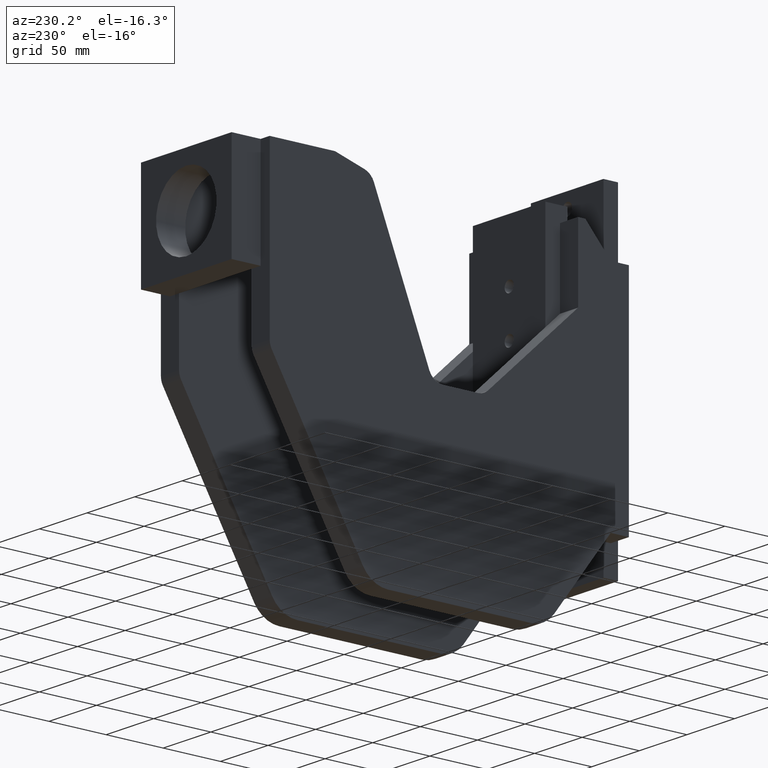
[diagram: clean part render]
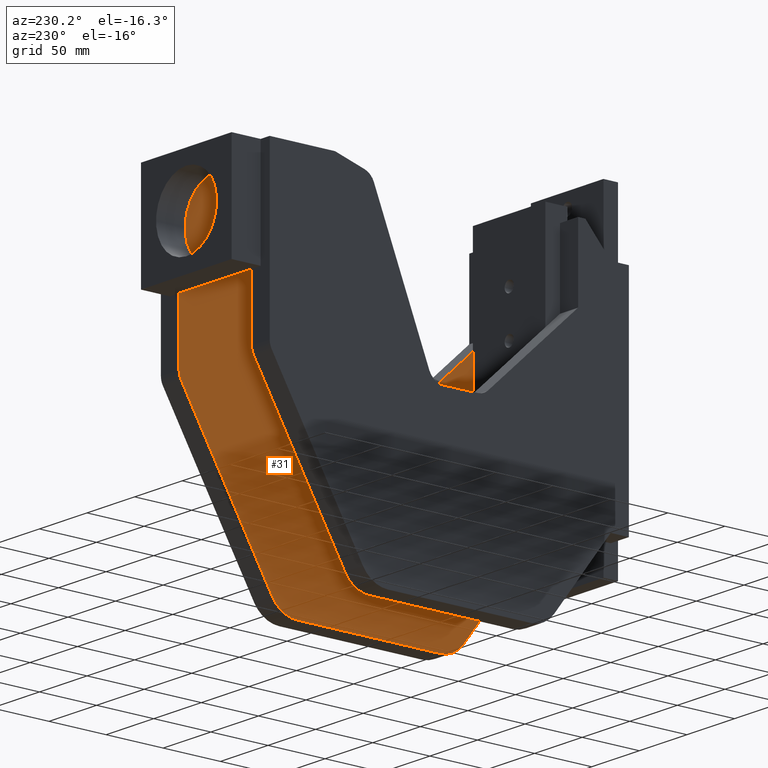
[diagram: same view with one face highlighted and labeled with its STEP entity id]
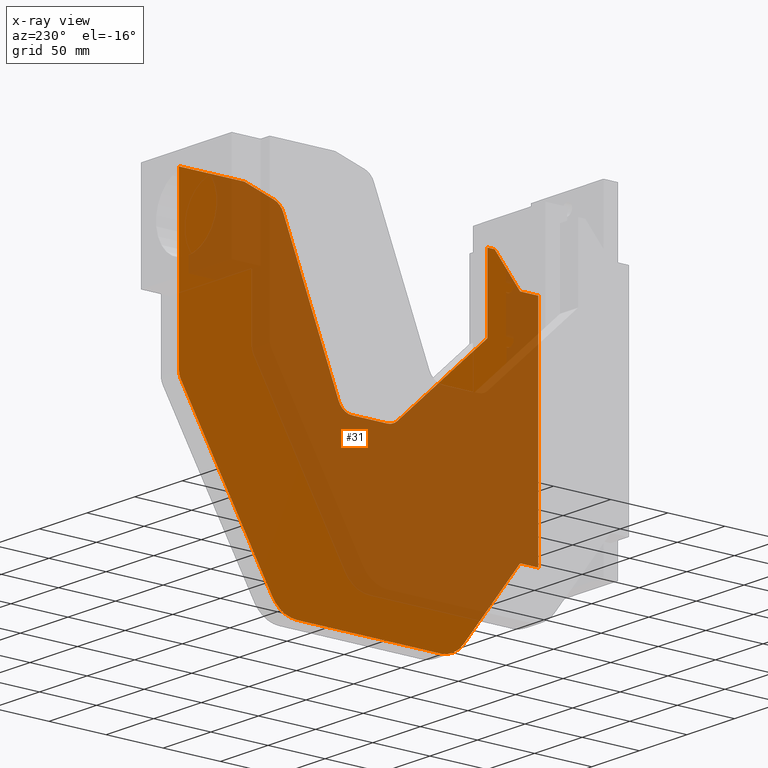
[diagram: x-ray of the same camera — body ghosted, the highlighted face saturated]
A machine part, auxiliary view. The second image highlights one B-rep face of the part: STEP entity #31.
The next image is the same camera in x-ray: the body ghosted, the highlighted face saturated — about 62% of this face is hidden behind the body in this view.
In plain terms, the highlighted planar face has unit normal (1, -0, 0).
Its self-contained STEP definition (entity closure, byte-faithful):
#9 = ORIENTED_EDGE ( 'NONE', *, *, #236, .F. ) ;
#12 = ORIENTED_EDGE ( 'NONE', *, *, #255, .F. ) ;
#16 = ORIENTED_EDGE ( 'NONE', *, *, #91, .F. ) ;
#21 = ORIENTED_EDGE ( 'NONE', *, *, #220, .F. ) ;
#26 = ORIENTED_EDGE ( 'NONE', *, *, #81, .F. ) ;
#27 = ORIENTED_EDGE ( 'NONE', *, *, #201, .F. ) ;
#30 = ORIENTED_EDGE ( 'NONE', *, *, #156, .F. ) ;
#31 = ADVANCED_FACE ( 'NONE', ( #580 ), #579, .F. ) ;
#32 = ORIENTED_EDGE ( 'NONE', *, *, #162, .F. ) ;
#34 = VERTEX_POINT ( 'NONE', #629 ) ;
#37 = VERTEX_POINT ( 'NONE', #628 ) ;
#39 = ORIENTED_EDGE ( 'NONE', *, *, #209, .F. ) ;
#40 = ORIENTED_EDGE ( 'NONE', *, *, #192, .F. ) ;
#45 = VERTEX_POINT ( 'NONE', #616 ) ;
#48 = ORIENTED_EDGE ( 'NONE', *, *, #205, .F. ) ;
#50 = ORIENTED_EDGE ( 'NONE', *, *, #140, .F. ) ;
#51 = ORIENTED_EDGE ( 'NONE', *, *, #148, .F. ) ;
#54 = ORIENTED_EDGE ( 'NONE', *, *, #283, .F. ) ;
#55 = ORIENTED_EDGE ( 'NONE', *, *, #175, .F. ) ;
#60 = EDGE_CURVE ( 'NONE', #265, #37, #609, .T. ) ;
#70 = EDGE_LOOP ( 'NONE', ( #32, #12, #76, #73, #26, #75, #79, #16, #72, #54, #21, #9, #40, #80, #55, #27, #48, #39, #50, #51, #30 ) ) ;
#72 = ORIENTED_EDGE ( 'NONE', *, *, #246, .F. ) ;
#73 = ORIENTED_EDGE ( 'NONE', *, *, #264, .F. ) ;
#75 = ORIENTED_EDGE ( 'NONE', *, *, #108, .F. ) ;
#76 = ORIENTED_EDGE ( 'NONE', *, *, #60, .F. ) ;
#79 = ORIENTED_EDGE ( 'NONE', *, *, #95, .F. ) ;
#80 = ORIENTED_EDGE ( 'NONE', *, *, #180, .F. ) ;
#81 = EDGE_CURVE ( 'NONE', #110, #45, #650, .T. ) ;
#91 = EDGE_CURVE ( 'NONE', #247, #34, #635, .T. ) ;
#95 = EDGE_CURVE ( 'NONE', #34, #98, #689, .T. ) ;
#98 = VERTEX_POINT ( 'NONE', #683 ) ;
#108 = EDGE_CURVE ( 'NONE', #98, #110, #732, .T. ) ;
#110 = VERTEX_POINT ( 'NONE', #728 ) ;
#140 = EDGE_CURVE ( 'NONE', #149, #141, #744, .T. ) ;
#141 = VERTEX_POINT ( 'NONE', #740 ) ;
#148 = EDGE_CURVE ( 'NONE', #157, #149, #791, .T. ) ;
#149 = VERTEX_POINT ( 'NONE', #787 ) ;
#156 = EDGE_CURVE ( 'NONE', #164, #157, #777, .T. ) ;
#157 = VERTEX_POINT ( 'NONE', #773 ) ;
#162 = EDGE_CURVE ( 'NONE', #163, #164, #767, .T. ) ;
#163 = VERTEX_POINT ( 'NONE', #763 ) ;
#164 = VERTEX_POINT ( 'NONE', #762 ) ;
#175 = EDGE_CURVE ( 'NONE', #196, #178, #806, .T. ) ;
#178 = VERTEX_POINT ( 'NONE', #800 ) ;
#180 = EDGE_CURVE ( 'NONE', #178, #181, #799, .T. ) ;
#181 = VERTEX_POINT ( 'NONE', #858 ) ;
#192 = EDGE_CURVE ( 'NONE', #181, #226, #841, .T. ) ;
#196 = VERTEX_POINT ( 'NONE', #833 ) ;
#201 = EDGE_CURVE ( 'NONE', #206, #196, #892, .T. ) ;
#205 = EDGE_CURVE ( 'NONE', #213, #206, #881, .T. ) ;
#206 = VERTEX_POINT ( 'NONE', #877 ) ;
#209 = EDGE_CURVE ( 'NONE', #141, #213, #876, .T. ) ;
#213 = VERTEX_POINT ( 'NONE', #866 ) ;
#220 = EDGE_CURVE ( 'NONE', #237, #221, #916, .T. ) ;
#221 = VERTEX_POINT ( 'NONE', #907 ) ;
#226 = VERTEX_POINT ( 'NONE', #901 ) ;
#236 = EDGE_CURVE ( 'NONE', #226, #237, #947, .T. ) ;
#237 = VERTEX_POINT ( 'NONE', #943 ) ;
#246 = EDGE_CURVE ( 'NONE', #284, #247, #927, .T. ) ;
#247 = VERTEX_POINT ( 'NONE', #987 ) ;
#255 = EDGE_CURVE ( 'NONE', #37, #163, #976, .T. ) ;
#264 = EDGE_CURVE ( 'NONE', #45, #265, #960, .T. ) ;
#265 = VERTEX_POINT ( 'NONE', #956 ) ;
#283 = EDGE_CURVE ( 'NONE', #221, #284, #989, .T. ) ;
#284 = VERTEX_POINT ( 'NONE', #1049 ) ;
#575 = DIRECTION ( 'NONE',  ( 1.000000000000000000, 3.155443620883993600E-030, 1.405158487424903500E-030 ) ) ;
#576 = DIRECTION ( 'NONE',  ( -1.405158487424903500E-030, -1.450379403067575000E-030, 1.000000000000000000 ) ) ;
#577 = CARTESIAN_POINT ( 'NONE',  ( 24.46844123263112500, 21.79248882520507600, 0.0000000000000000000 ) ) ;
#578 = AXIS2_PLACEMENT_3D ( 'NONE', #577, #576, #575 ) ;
#579 = PLANE ( 'NONE',  #578 ) ;
#580 = FACE_OUTER_BOUND ( 'NONE', #70, .T. ) ;
#605 = DIRECTION ( 'NONE',  ( 1.000000000000000000, 0.0000000000000000000, 1.405158487424898600E-030 ) ) ;
#606 = DIRECTION ( 'NONE',  ( -1.405158487424903600E-030, 1.450379403067574800E-030, -1.000000000000000000 ) ) ;
#607 = CARTESIAN_POINT ( 'NONE',  ( 24.46844123263112500, 21.79248882520507600, 0.0000000000000000000 ) ) ;
#608 = AXIS2_PLACEMENT_3D ( 'NONE', #607, #606, #605 ) ;
#609 = CIRCLE ( 'NONE', #608, 0.5000000000000017800 ) ;
#616 = CARTESIAN_POINT ( 'NONE',  ( 24.96844123263105800, 23.00701407466547400, 0.0000000000000000000 ) ) ;
#628 = CARTESIAN_POINT ( 'NONE',  ( 24.83584294587590700, 21.45334876401384600, -8.878505979408856000E-015 ) ) ;
#629 = CARTESIAN_POINT ( 'NONE',  ( 19.52378603699440500, 25.70418072678714000, -1.365923996832131600E-016 ) ) ;
#635 = LINE ( 'NONE', #697, #696 ) ;
#646 = DIRECTION ( 'NONE',  ( 1.000000000000000000, 0.0000000000000000000, 1.395161849477362800E-030 ) ) ;
#647 = DIRECTION ( 'NONE',  ( -1.405158487424903600E-030, 1.450379403067574800E-030, -1.000000000000000000 ) ) ;
#648 = CARTESIAN_POINT ( 'NONE',  ( 24.46844123263127800, 23.00701453877276100, -1.365923996832131600E-016 ) ) ;
#649 = AXIS2_PLACEMENT_3D ( 'NONE', #648, #647, #646 ) ;
#650 = CIRCLE ( 'NONE', #649, 0.5000000000000017800 ) ;
#683 = CARTESIAN_POINT ( 'NONE',  ( 19.81886975367431700, 25.38287426402068500, -1.365923996832131600E-016 ) ) ;
#685 = DIRECTION ( 'NONE',  ( 1.000000000000000000, 0.0000000000000000000, 1.405158487424905400E-030 ) ) ;
#686 = DIRECTION ( 'NONE',  ( 1.405158487424903600E-030, -1.450379403067574800E-030, 1.000000000000000000 ) ) ;
#687 = CARTESIAN_POINT ( 'NONE',  ( 20.00269919255537200, 25.84785462640244400, 0.0000000000000000000 ) ) ;
#688 = AXIS2_PLACEMENT_3D ( 'NONE', #687, #686, #685 ) ;
#689 = CIRCLE ( 'NONE', #688, 0.5000000000000061100 ) ;
#695 = DIRECTION ( 'NONE',  ( 0.2873477992306192600, -0.9578263111218650000, 1.531499491776728000E-030 ) ) ;
#696 = VECTOR ( 'NONE', #695, 39.37007874015748100 ) ;
#697 = CARTESIAN_POINT ( 'NONE',  ( 19.21844123263078400, 26.72199707466578600, -1.365923996832131600E-016 ) ) ;
#728 = CARTESIAN_POINT ( 'NONE',  ( 24.65227067151233300, 23.47199490115452000, 0.0000000000000000000 ) ) ;
#729 = DIRECTION ( 'NONE',  ( 0.9299607247635293100, -0.3676588777621061500, 1.867381674077834500E-030 ) ) ;
#730 = VECTOR ( 'NONE', #729, 39.37007874015748100 ) ;
#731 = CARTESIAN_POINT ( 'NONE',  ( 19.81886975367431700, 25.38287426402068500, -1.365923996832131600E-016 ) ) ;
#732 = LINE ( 'NONE', #731, #730 ) ;
#740 = CARTESIAN_POINT ( 'NONE',  ( 20.46844123263079100, 16.59699707466579000, -1.365923996832131600E-016 ) ) ;
#741 = DIRECTION ( 'NONE',  ( -3.747089299799806100E-030, -1.000000000000000000, 1.401075596491286600E-030 ) ) ;
#742 = VECTOR ( 'NONE', #741, 39.37007874015748100 ) ;
#743 = CARTESIAN_POINT ( 'NONE',  ( 20.46844123263078800, 17.22199707466579000, -1.365923996832131600E-016 ) ) ;
#744 = LINE ( 'NONE', #743, #742 ) ;
#762 = CARTESIAN_POINT ( 'NONE',  ( 19.46844123263079100, 18.34699707466535700, 0.0000000000000000000 ) ) ;
#763 = CARTESIAN_POINT ( 'NONE',  ( 21.96844123263118900, 18.34699707466535700, 1.147376157338990600E-014 ) ) ;
#764 = DIRECTION ( 'NONE',  ( -1.000000000000000000, -3.155443620883993600E-030, -1.405158487424903600E-030 ) ) ;
#765 = VECTOR ( 'NONE', #764, 39.37007874015748100 ) ;
#766 = CARTESIAN_POINT ( 'NONE',  ( 19.46844123263079100, 18.34699707466535700, 0.0000000000000000000 ) ) ;
#767 = LINE ( 'NONE', #766, #765 ) ;
#773 = CARTESIAN_POINT ( 'NONE',  ( 19.46844123263079100, 18.09699707466579000, 0.0000000000000000000 ) ) ;
#774 = DIRECTION ( 'NONE',  ( -3.747089299799806100E-030, -1.000000000000000000, 1.401075596491286600E-030 ) ) ;
#775 = VECTOR ( 'NONE', #774, 39.37007874015748100 ) ;
#776 = CARTESIAN_POINT ( 'NONE',  ( 19.46844123263079100, 18.09699707466579000, 0.0000000000000000000 ) ) ;
#777 = LINE ( 'NONE', #776, #775 ) ;
#787 = CARTESIAN_POINT ( 'NONE',  ( 20.46844123263078800, 17.22199707466579000, -1.365923996832131600E-016 ) ) ;
#788 = DIRECTION ( 'NONE',  ( 0.7525766947068849300, -0.6585046078685099500, 2.107737731137363900E-030 ) ) ;
#789 = VECTOR ( 'NONE', #788, 39.37007874015748100 ) ;
#790 = CARTESIAN_POINT ( 'NONE',  ( 19.46844123263079100, 18.09699707466579000, 0.0000000000000000000 ) ) ;
#791 = LINE ( 'NONE', #790, #789 ) ;
#796 = DIRECTION ( 'NONE',  ( 3.747089299799806100E-030, 1.000000000000000000, -1.401075596491286600E-030 ) ) ;
#797 = VECTOR ( 'NONE', #796, 39.37007874015748100 ) ;
#798 = CARTESIAN_POINT ( 'NONE',  ( 30.96844123263153700, 24.89762715887902900, 0.0000000000000000000 ) ) ;
#799 = LINE ( 'NONE', #798, #797 ) ;
#800 = CARTESIAN_POINT ( 'NONE',  ( 30.96844123263153700, 19.97199707466651500, -1.365923996832131600E-016 ) ) ;
#802 = DIRECTION ( 'NONE',  ( 1.000000000000000000, 0.0000000000000000000, 1.410326652189054800E-030 ) ) ;
#803 = DIRECTION ( 'NONE',  ( 1.405158487424903600E-030, -1.450379403067574800E-030, 1.000000000000000000 ) ) ;
#804 = CARTESIAN_POINT ( 'NONE',  ( 29.96844123263154100, 19.97199707466637300, -1.365923996832131600E-016 ) ) ;
#805 = AXIS2_PLACEMENT_3D ( 'NONE', #804, #803, #802 ) ;
#806 = CIRCLE ( 'NONE', #805, 1.000000000000016700 ) ;
#833 = CARTESIAN_POINT ( 'NONE',  ( 30.56844123263154200, 19.17199707466652100, 1.133716917370669200E-014 ) ) ;
#838 = DIRECTION ( 'NONE',  ( 1.000000000000000000, 0.0000000000000000000, 1.405158487424900800E-030 ) ) ;
#839 = DIRECTION ( 'NONE',  ( 1.405158487424903600E-030, -1.450379403067574800E-030, 1.000000000000000000 ) ) ;
#840 = AXIS2_PLACEMENT_3D ( 'NONE', #846, #839, #838 ) ;
#841 = CIRCLE ( 'NONE', #840, 1.000000000000016700 ) ;
#846 = CARTESIAN_POINT ( 'NONE',  ( 29.96844123263154100, 24.89762715887902900, 0.0000000000000000000 ) ) ;
#858 = CARTESIAN_POINT ( 'NONE',  ( 30.96844123263154500, 24.89762715887902900, 0.0000000000000000000 ) ) ;
#866 = CARTESIAN_POINT ( 'NONE',  ( 27.96844123263122500, 16.59699707466575400, -1.365923996832131600E-016 ) ) ;
#873 = DIRECTION ( 'NONE',  ( 1.000000000000000000, 2.913971193241694900E-016, 1.405158487424903600E-030 ) ) ;
#874 = VECTOR ( 'NONE', #873, 39.37007874015748100 ) ;
#875 = CARTESIAN_POINT ( 'NONE',  ( 27.96844123263122500, 16.59699707466575400, -1.365923996832131600E-016 ) ) ;
#876 = LINE ( 'NONE', #875, #874 ) ;
#877 = CARTESIAN_POINT ( 'NONE',  ( 27.96844123263122500, 17.22199707466648600, -1.365923996832131600E-016 ) ) ;
#878 = DIRECTION ( 'NONE',  ( 3.747089299799806100E-030, 1.000000000000000000, -1.401075596491286600E-030 ) ) ;
#879 = VECTOR ( 'NONE', #878, 39.37007874015748100 ) ;
#880 = CARTESIAN_POINT ( 'NONE',  ( 27.96844123263122500, 17.22199707466648600, -1.365923996832131600E-016 ) ) ;
#881 = LINE ( 'NONE', #880, #879 ) ;
#889 = DIRECTION ( 'NONE',  ( 0.8000000000000048200, 0.5999999999999936500, 4.683861624749694500E-031 ) ) ;
#890 = VECTOR ( 'NONE', #889, 39.37007874015748100 ) ;
#891 = CARTESIAN_POINT ( 'NONE',  ( 30.56844123263154200, 19.17199707466652100, 1.133716917370669200E-014 ) ) ;
#892 = LINE ( 'NONE', #891, #890 ) ;
#901 = CARTESIAN_POINT ( 'NONE',  ( 30.47231215846109400, 25.76140611793252000, -1.365923996832131600E-016 ) ) ;
#907 = CARTESIAN_POINT ( 'NONE',  ( 24.83326594767153500, 28.97199707466580100, 0.0000000000000000000 ) ) ;
#908 = DIRECTION ( 'NONE',  ( 1.000000000000000000, 0.0000000000000000000, 1.405158487424905200E-030 ) ) ;
#909 = DIRECTION ( 'NONE',  ( 1.405158487424903600E-030, -1.450379403067574800E-030, 1.000000000000000000 ) ) ;
#910 = CARTESIAN_POINT ( 'NONE',  ( 24.83326594767153500, 28.47199707466587200, 0.0000000000000000000 ) ) ;
#911 = AXIS2_PLACEMENT_3D ( 'NONE', #910, #909, #908 ) ;
#916 = CIRCLE ( 'NONE', #911, 0.4999999999999406000 ) ;
#924 = DIRECTION ( 'NONE',  ( -3.747089299799806100E-030, -1.000000000000000000, 1.401075596491286600E-030 ) ) ;
#925 = VECTOR ( 'NONE', #924, 39.37007874015748100 ) ;
#926 = CARTESIAN_POINT ( 'NONE',  ( 19.21844123263078400, 28.97199707466579700, 0.0000000000000000000 ) ) ;
#927 = LINE ( 'NONE', #926, #925 ) ;
#943 = CARTESIAN_POINT ( 'NONE',  ( 25.08520141058637900, 28.90388655419253900, 0.0000000000000000000 ) ) ;
#944 = DIRECTION ( 'NONE',  ( -0.8637789590534918900, 0.5038709258296868400, -2.107737731137360400E-030 ) ) ;
#945 = VECTOR ( 'NONE', #944, 39.37007874015748100 ) ;
#946 = CARTESIAN_POINT ( 'NONE',  ( 25.08520141058638200, 28.90388655419254600, 0.0000000000000000000 ) ) ;
#947 = LINE ( 'NONE', #946, #945 ) ;
#956 = CARTESIAN_POINT ( 'NONE',  ( 24.96844123263105100, 21.79248907466547500, 0.0000000000000000000 ) ) ;
#957 = DIRECTION ( 'NONE',  ( -3.747089299799806800E-030, -1.000000000000000000, 1.401075596491286600E-030 ) ) ;
#958 = VECTOR ( 'NONE', #957, 39.37007874015748100 ) ;
#959 = CARTESIAN_POINT ( 'NONE',  ( 24.96844123263105800, 21.79248907466547500, 0.0000000000000000000 ) ) ;
#960 = LINE ( 'NONE', #959, #958 ) ;
#973 = DIRECTION ( 'NONE',  ( -0.6782801223824769200, -0.7348034264895694200, -4.560602108308948200E-031 ) ) ;
#974 = VECTOR ( 'NONE', #973, 39.37007874015748100 ) ;
#975 = CARTESIAN_POINT ( 'NONE',  ( 21.96844123263118900, 18.34699707466535700, 1.147376157338990600E-014 ) ) ;
#976 = LINE ( 'NONE', #975, #974 ) ;
#987 = CARTESIAN_POINT ( 'NONE',  ( 19.21844123263078400, 26.72199707466578600, -1.365923996832131600E-016 ) ) ;
#988 = CARTESIAN_POINT ( 'NONE',  ( 19.21844123263078400, 28.97199707466579700, 0.0000000000000000000 ) ) ;
#989 = LINE ( 'NONE', #988, #1051 ) ;
#1049 = CARTESIAN_POINT ( 'NONE',  ( 19.21844123263078400, 28.97199707466579700, 0.0000000000000000000 ) ) ;
#1050 = DIRECTION ( 'NONE',  ( -1.000000000000000000, -3.155443620883993600E-030, -1.405158487424903600E-030 ) ) ;
#1051 = VECTOR ( 'NONE', #1050, 39.37007874015748100 ) ;